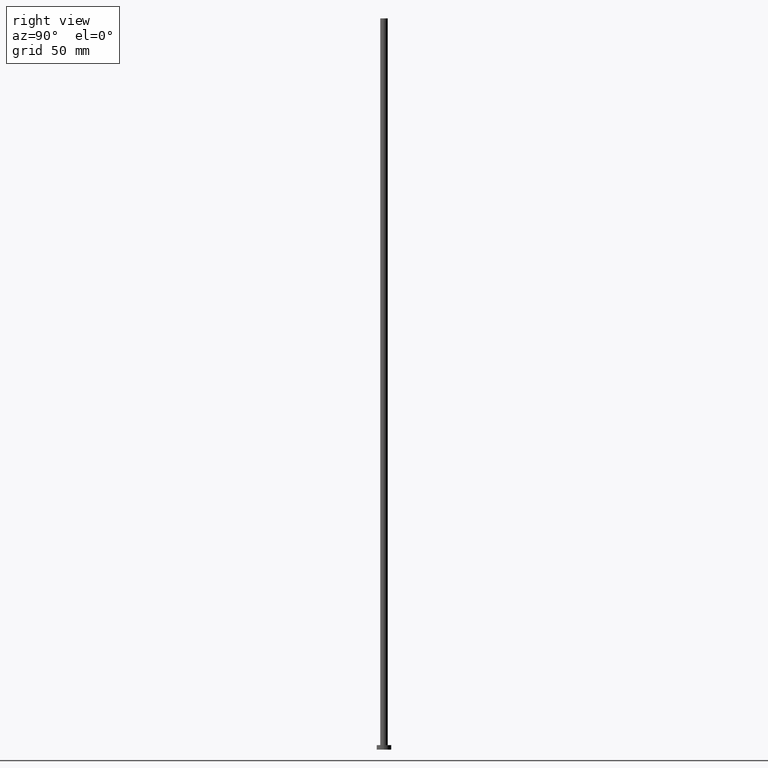
[diagram: clean part render]
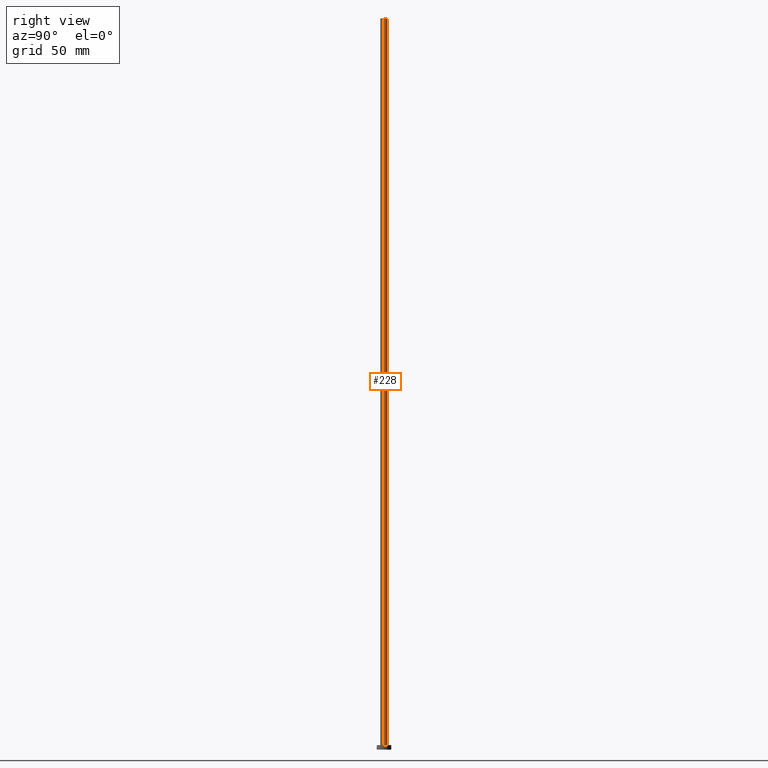
[diagram: same view with one face highlighted and labeled with its STEP entity id]
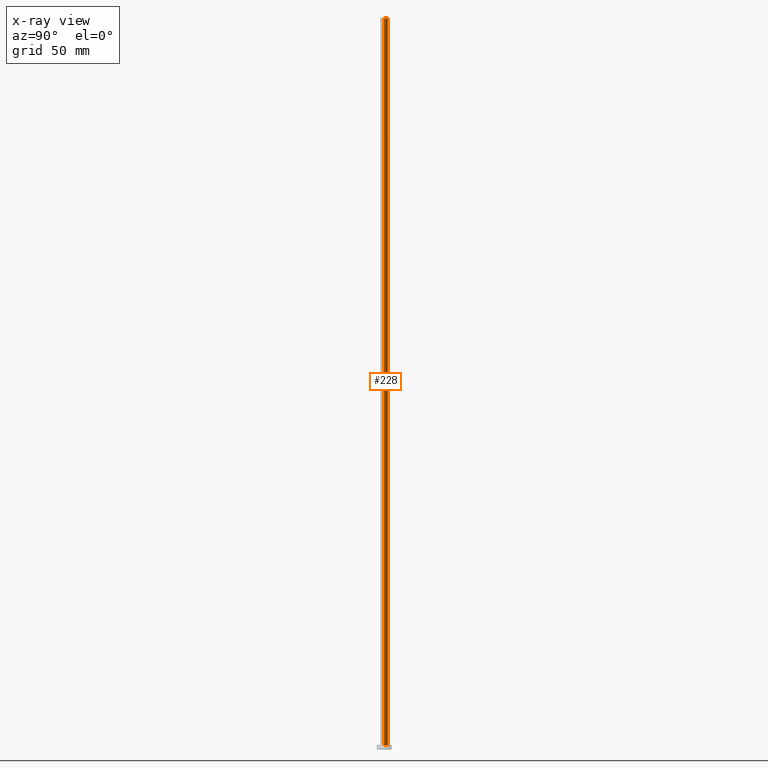
[diagram: x-ray of the same camera — body ghosted, the highlighted face saturated]
A machine part, right view. The second image highlights one B-rep face of the part: STEP entity #228.
The next image is the same camera in x-ray: the body ghosted, the highlighted face saturated — about 0% of this face is hidden behind the body in this view.
In plain terms, the highlighted cylindrical surface (edge-blend (fillet) strip) has radius 2.6 mm, axis along (-0, -0, -1).
Its self-contained STEP definition (entity closure, byte-faithful):
#1 = DIRECTION ( 'NONE',  ( 0.000000000000000000, 0.000000000000000000, 1.000000000000000000 ) ) ;
#23 = CARTESIAN_POINT ( 'NONE',  ( 2.600000000000000089, 3.184081677783117698E-16, 500.0000000000000000 ) ) ;
#27 = FACE_OUTER_BOUND ( 'NONE', #225, .T. ) ;
#34 = VERTEX_POINT ( 'NONE', #132 ) ;
#43 = DIRECTION ( 'NONE',  ( 1.000000000000000000, 0.000000000000000000, 0.000000000000000000 ) ) ;
#45 = DIRECTION ( 'NONE',  ( -0.000000000000000000, -0.000000000000000000, -1.000000000000000000 ) ) ;
#46 = CARTESIAN_POINT ( 'NONE',  ( -2.600000000000000089, 0.000000000000000000, 500.0000000000000000 ) ) ;
#55 = VERTEX_POINT ( 'NONE', #190 ) ;
#56 = AXIS2_PLACEMENT_3D ( 'NONE', #180, #254, #79 ) ;
#58 = AXIS2_PLACEMENT_3D ( 'NONE', #97, #212, #43 ) ;
#79 = DIRECTION ( 'NONE',  ( -1.000000000000000000, 0.000000000000000000, 0.000000000000000000 ) ) ;
#83 = LINE ( 'NONE', #160, #87 ) ;
#87 = VECTOR ( 'NONE', #156, 1000.000000000000000 ) ;
#93 = VERTEX_POINT ( 'NONE', #23 ) ;
#97 = CARTESIAN_POINT ( 'NONE',  ( 0.000000000000000000, 0.000000000000000000, 3.000000000000000000 ) ) ;
#99 = DIRECTION ( 'NONE',  ( 1.000000000000000000, 0.000000000000000000, 0.000000000000000000 ) ) ;
#117 = ORIENTED_EDGE ( 'NONE', *, *, #208, .F. ) ;
#123 = EDGE_CURVE ( 'NONE', #93, #55, #242, .T. ) ;
#124 = LINE ( 'NONE', #46, #240 ) ;
#132 = CARTESIAN_POINT ( 'NONE',  ( 2.600000000000000089, 3.184081677783117698E-16, 3.000000000000000000 ) ) ;
#134 = AXIS2_PLACEMENT_3D ( 'NONE', #139, #1, #99 ) ;
#139 = CARTESIAN_POINT ( 'NONE',  ( 0.000000000000000000, 0.000000000000000000, 500.0000000000000000 ) ) ;
#149 = EDGE_CURVE ( 'NONE', #34, #207, #163, .T. ) ;
#150 = ORIENTED_EDGE ( 'NONE', *, *, #149, .T. ) ;
#156 = DIRECTION ( 'NONE',  ( -0.000000000000000000, -0.000000000000000000, -1.000000000000000000 ) ) ;
#160 = CARTESIAN_POINT ( 'NONE',  ( 2.600000000000000089, 3.184081677783117698E-16, 500.0000000000000000 ) ) ;
#163 = CIRCLE ( 'NONE', #58, 2.600000000000000089 ) ;
#180 = CARTESIAN_POINT ( 'NONE',  ( 0.000000000000000000, 0.000000000000000000, 500.0000000000000000 ) ) ;
#190 = CARTESIAN_POINT ( 'NONE',  ( -2.600000000000000089, 0.000000000000000000, 500.0000000000000000 ) ) ;
#198 = CYLINDRICAL_SURFACE ( 'NONE', #56, 2.600000000000000089 ) ;
#207 = VERTEX_POINT ( 'NONE', #234 ) ;
#208 = EDGE_CURVE ( 'NONE', #55, #207, #124, .T. ) ;
#212 = DIRECTION ( 'NONE',  ( 0.000000000000000000, 0.000000000000000000, 1.000000000000000000 ) ) ;
#222 = ORIENTED_EDGE ( 'NONE', *, *, #123, .F. ) ;
#225 = EDGE_LOOP ( 'NONE', ( #222, #249, #150, #117 ) ) ;
#228 = ADVANCED_FACE ( 'NONE', ( #27 ), #198, .T. ) ;
#234 = CARTESIAN_POINT ( 'NONE',  ( -2.600000000000000089, 0.000000000000000000, 3.000000000000000000 ) ) ;
#238 = EDGE_CURVE ( 'NONE', #93, #34, #83, .T. ) ;
#240 = VECTOR ( 'NONE', #45, 1000.000000000000000 ) ;
#242 = CIRCLE ( 'NONE', #134, 2.600000000000000089 ) ;
#249 = ORIENTED_EDGE ( 'NONE', *, *, #238, .T. ) ;
#254 = DIRECTION ( 'NONE',  ( -0.000000000000000000, -0.000000000000000000, -1.000000000000000000 ) ) ;